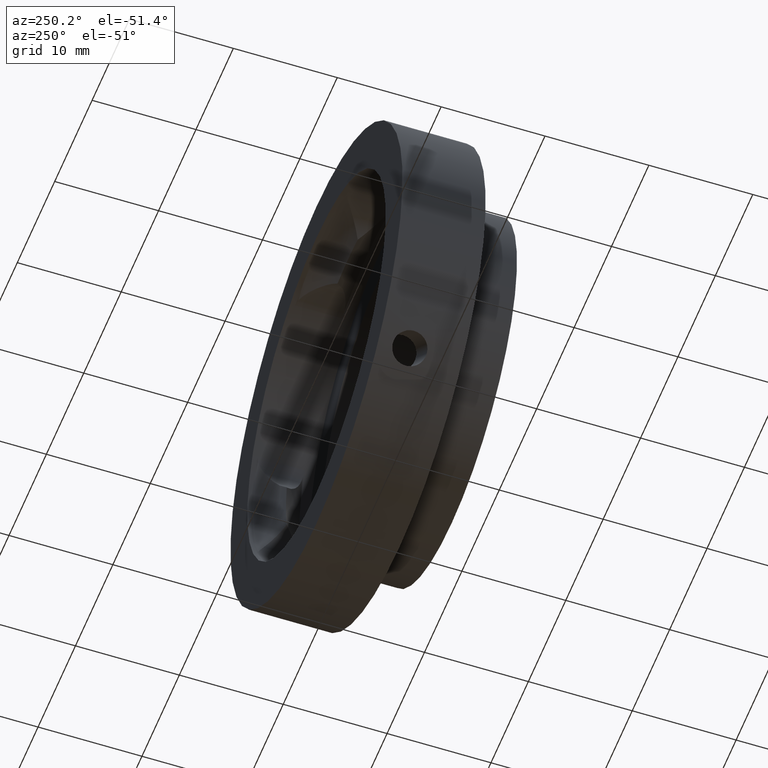
[diagram: clean part render]
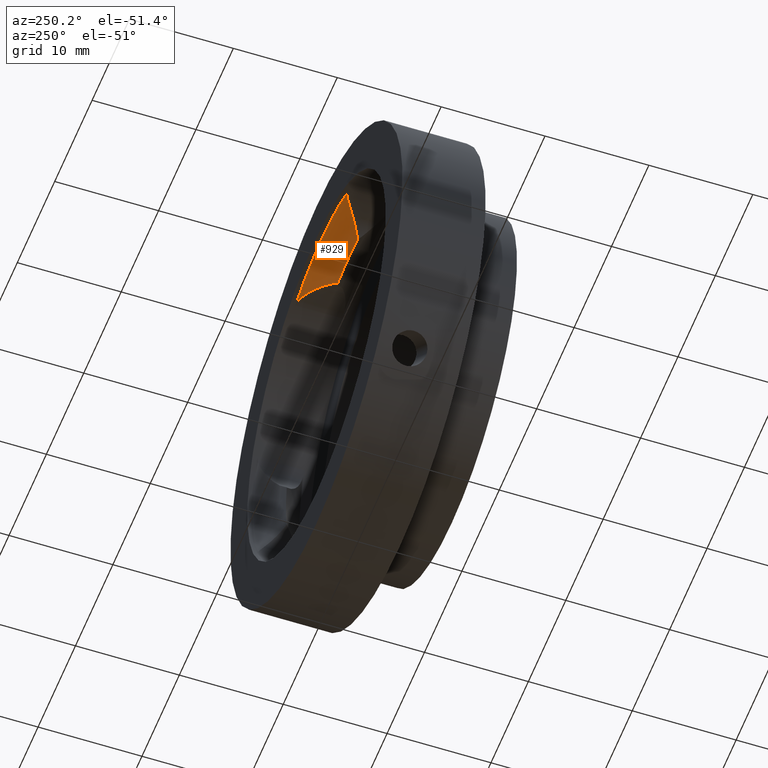
[diagram: same view with one face highlighted and labeled with its STEP entity id]
A machine part, auxiliary view. The second image highlights one B-rep face of the part: STEP entity #929.
In plain terms, the highlighted toroidal blend (fillet) surface has major radius 14.6376 mm and minor (blend) radius 4 mm.
Its self-contained STEP definition (entity closure, byte-faithful):
#3 = CARTESIAN_POINT ( 'NONE',  ( 3.309383978498485300, 1.376648082875349600, 16.79154448145638800 ) ) ;
#8 = CARTESIAN_POINT ( 'NONE',  ( -3.818328121953643400, 1.715373747438431400, 17.05630417228515600 ) ) ;
#13 = CARTESIAN_POINT ( 'NONE',  ( 5.427035956763773200, 2.808454470466621400, 17.42273638806529200 ) ) ;
#30 = DIRECTION ( 'NONE',  ( -1.000000000000000000, 0.0000000000000000000, -3.491481338843133700E-015 ) ) ;
#47 = EDGE_CURVE ( 'NONE', #1007, #974, #82, .T. ) ;
#48 = DIRECTION ( 'NONE',  ( -1.000000000000000000, 0.0000000000000000000, -3.491481338843133700E-015 ) ) ;
#60 = EDGE_CURVE ( 'NONE', #185, #801, #294, .T. ) ;
#82 = CIRCLE ( 'NONE', #133, 16.50000000000000400 ) ;
#87 = CARTESIAN_POINT ( 'NONE',  ( -6.189832400947998400, 3.269522945828833700, 17.36340583699442100 ) ) ;
#104 = CARTESIAN_POINT ( 'NONE',  ( -4.881920887914940700, 2.441744844110305100, 17.37627171932058100 ) ) ;
#133 = AXIS2_PLACEMENT_3D ( 'NONE', #210, #499, #48 ) ;
#151 = CARTESIAN_POINT ( 'NONE',  ( 2.265596578422603800E-015, 3.496721311475400600, 18.50000000000000400 ) ) ;
#179 = CARTESIAN_POINT ( 'NONE',  ( -6.799419849856213300, 3.482401770957626900, 17.20142613376728800 ) ) ;
#183 = ORIENTED_EDGE ( 'NONE', *, *, #223, .T. ) ;
#184 = CARTESIAN_POINT ( 'NONE',  ( 3.814683146563549800, 1.712919933562090600, 17.05464045493921100 ) ) ;
#185 = VERTEX_POINT ( 'NONE', #151 ) ;
#188 = CARTESIAN_POINT ( 'NONE',  ( -3.481859580618705600, 1.491401494846170000, 16.88157682170984900 ) ) ;
#210 = CARTESIAN_POINT ( 'NONE',  ( 0.0000000000000000000, 0.9967213114754017700, 0.0000000000000000000 ) ) ;
#223 = EDGE_CURVE ( 'NONE', #567, #185, #746, .T. ) ;
#224 = ORIENTED_EDGE ( 'NONE', *, *, #47, .F. ) ;
#226 = CARTESIAN_POINT ( 'NONE',  ( -2.696194980232713400, 0.9967213114754017700, 16.27822264955753800 ) ) ;
#240 = CARTESIAN_POINT ( 'NONE',  ( 0.0000000000000000000, 3.496721311475400600, 0.0000000000000000000 ) ) ;
#265 = CARTESIAN_POINT ( 'NONE',  ( 7.009002072654526600, 3.496721311475400600, 17.12086125011018500 ) ) ;
#267 = ORIENTED_EDGE ( 'NONE', *, *, #393, .T. ) ;
#276 = CARTESIAN_POINT ( 'NONE',  ( -3.990437708296221700, 1.831773841888898000, 17.13059303483643300 ) ) ;
#280 = CARTESIAN_POINT ( 'NONE',  ( 4.878601936514613200, 2.439475657725493900, 17.37573465897291700 ) ) ;
#284 = CARTESIAN_POINT ( 'NONE',  ( -4.522256403561862600, 2.195338139958088200, 17.30367196314876900 ) ) ;
#286 = CARTESIAN_POINT ( 'NONE',  ( 2.696194980232600600, 0.9967213114754017700, 16.27822264955755900 ) ) ;
#294 = CIRCLE ( 'NONE', #295, 18.50000000000000400 ) ;
#295 = AXIS2_PLACEMENT_3D ( 'NONE', #592, #785, #791 ) ;
#332 = DIRECTION ( 'NONE',  ( -1.000000000000000000, 0.0000000000000000000, -3.491481338843133000E-015 ) ) ;
#365 = CARTESIAN_POINT ( 'NONE',  ( 5.059515939408998800, 2.563154542518791600, 17.39969678763883800 ) ) ;
#377 = CARTESIAN_POINT ( 'NONE',  ( -6.492012457404905000, 3.396654395817728200, 17.29381032218389400 ) ) ;
#379 = B_SPLINE_CURVE_WITH_KNOTS ( 'NONE', 3,
 ( #854, #384, #1140, #758, #188, #8, #276, #572, #284, #104, #930, #943, #1027, #940, #87, #377, #469, #179, #1133, #382 ),
 .UNSPECIFIED., .F., .F.,
 ( 4, 2, 2, 2, 2, 2, 2, 2, 2, 4 ),
 ( 0.01947316875624095100, 0.02013732411579242900, 0.02080147947534390400, 0.02146563483489538300, 0.02212979019444686100, 0.02279394555399833600, 0.02345810091354981500, 0.02412225627310129300, 0.02445433395287703200, 0.02478641163265277200 ),
 .UNSPECIFIED. ) ;
#382 = CARTESIAN_POINT ( 'NONE',  ( -7.009002072654650000, 3.496721311475400600, 17.12086125011014200 ) ) ;
#384 = CARTESIAN_POINT ( 'NONE',  ( -2.841928745961778800, 1.083257676839830500, 16.42080530397894800 ) ) ;
#391 = EDGE_LOOP ( 'NONE', ( #224, #267, #183, #1067, #1084 ) ) ;
#393 = EDGE_CURVE ( 'NONE', #1007, #567, #379, .T. ) ;
#401 = DIRECTION ( 'NONE',  ( 0.0000000000000000000, 1.000000000000000000, 0.0000000000000000000 ) ) ;
#406 = EDGE_CURVE ( 'NONE', #801, #974, #483, .T. ) ;
#424 = DIRECTION ( 'NONE',  ( 0.0000000000000000000, 1.000000000000000000, 0.0000000000000000000 ) ) ;
#469 = CARTESIAN_POINT ( 'NONE',  ( -6.593454132979362100, 3.432225387919167800, 17.26637112657474300 ) ) ;
#475 = CARTESIAN_POINT ( 'NONE',  ( 5.614732754411211800, 2.931068077787912800, 17.42176161910860100 ) ) ;
#483 = B_SPLINE_CURVE_WITH_KNOTS ( 'NONE', 3,
 ( #1138, #1035, #838, #1040, #754, #556, #946, #475, #13, #365, #280, #561, #1218, #764, #184, #3, #1127, #286 ),
 .UNSPECIFIED., .F., .F.,
 ( 4, 2, 2, 2, 2, 2, 2, 2, 4 ),
 ( 0.02911646445298699300, 0.02945188218109116200, 0.02978729990919533000, 0.03045813536540366300, 0.03112897082161200000, 0.03179980627782033600, 0.03247064173402866600, 0.03314147719023700200, 0.03448314810265366800 ),
 .UNSPECIFIED. ) ;
#497 = CARTESIAN_POINT ( 'NONE',  ( 0.0000000000000000000, 4.536678175484937900, 0.0000000000000000000 ) ) ;
#499 = DIRECTION ( 'NONE',  ( 0.0000000000000000000, 1.000000000000000000, 0.0000000000000000000 ) ) ;
#556 = CARTESIAN_POINT ( 'NONE',  ( 6.187004466313717400, 3.268089162794293400, 17.36391773417063800 ) ) ;
#561 = CARTESIAN_POINT ( 'NONE',  ( 4.519949017221313700, 2.193752640003354700, 17.30307122314359000 ) ) ;
#567 = VERTEX_POINT ( 'NONE', #1171 ) ;
#572 = CARTESIAN_POINT ( 'NONE',  ( -4.342653221995796300, 2.071907201204979300, 17.25445482783870700 ) ) ;
#592 = CARTESIAN_POINT ( 'NONE',  ( 0.0000000000000000000, 3.496721311475400600, 0.0000000000000000000 ) ) ;
#680 = CARTESIAN_POINT ( 'NONE',  ( 2.696194980232600600, 0.9967213114754017700, 16.27822264955755900 ) ) ;
#742 = TOROIDAL_SURFACE ( 'NONE', #965, 14.63755391998808100, 4.000000000000000000 ) ;
#746 = CIRCLE ( 'NONE', #950, 18.50000000000000400 ) ;
#754 = CARTESIAN_POINT ( 'NONE',  ( 6.489612686074695900, 3.395764499672379700, 17.29443141156208300 ) ) ;
#758 = CARTESIAN_POINT ( 'NONE',  ( -3.317503025158172300, 1.383803078169443500, 16.78116720282783800 ) ) ;
#764 = CARTESIAN_POINT ( 'NONE',  ( 3.989161027966479500, 1.830906347312716300, 17.13010007589784300 ) ) ;
#770 = FACE_OUTER_BOUND ( 'NONE', #391, .T. ) ;
#785 = DIRECTION ( 'NONE',  ( 0.0000000000000000000, 1.000000000000000000, 0.0000000000000000000 ) ) ;
#791 = DIRECTION ( 'NONE',  ( -1.000000000000000000, 0.0000000000000000000, -3.491481338843133000E-015 ) ) ;
#801 = VERTEX_POINT ( 'NONE', #265 ) ;
#838 = CARTESIAN_POINT ( 'NONE',  ( 6.799716323677623500, 3.482493921932085600, 17.20134099735960100 ) ) ;
#854 = CARTESIAN_POINT ( 'NONE',  ( -2.696194980232713400, 0.9967213114754017700, 16.27822264955753800 ) ) ;
#929 = ADVANCED_FACE ( 'NONE', ( #770 ), #742, .F. ) ;
#930 = CARTESIAN_POINT ( 'NONE',  ( -5.062972195141851400, 2.565497703908635100, 17.40005995960787600 ) ) ;
#940 = CARTESIAN_POINT ( 'NONE',  ( -5.997083040570802700, 3.161636105778485600, 17.39181581353225100 ) ) ;
#943 = CARTESIAN_POINT ( 'NONE',  ( -5.429985369823857200, 2.810386111617965800, 17.42277220393307500 ) ) ;
#946 = CARTESIAN_POINT ( 'NONE',  ( 5.994942858208590400, 3.160417594367918700, 17.39208216788540200 ) ) ;
#950 = AXIS2_PLACEMENT_3D ( 'NONE', #240, #424, #332 ) ;
#965 = AXIS2_PLACEMENT_3D ( 'NONE', #497, #401, #30 ) ;
#974 = VERTEX_POINT ( 'NONE', #680 ) ;
#1007 = VERTEX_POINT ( 'NONE', #226 ) ;
#1027 = CARTESIAN_POINT ( 'NONE',  ( -5.616708695620848100, 2.932331705851903600, 17.42170559750247000 ) ) ;
#1035 = CARTESIAN_POINT ( 'NONE',  ( 6.905958475420027800, 3.496721311475403200, 17.16304562249891700 ) ) ;
#1040 = CARTESIAN_POINT ( 'NONE',  ( 6.592597498048125000, 3.431996719209202200, 17.26663287005818100 ) ) ;
#1067 = ORIENTED_EDGE ( 'NONE', *, *, #60, .T. ) ;
#1084 = ORIENTED_EDGE ( 'NONE', *, *, #406, .T. ) ;
#1127 = CARTESIAN_POINT ( 'NONE',  ( 2.991469206254828700, 1.172054448431503900, 16.56711234315652000 ) ) ;
#1133 = CARTESIAN_POINT ( 'NONE',  ( -6.904947751138544200, 3.496721311475408500, 17.16345939657724900 ) ) ;
#1138 = CARTESIAN_POINT ( 'NONE',  ( 7.009002072654526600, 3.496721311475400600, 17.12086125011018500 ) ) ;
#1140 = CARTESIAN_POINT ( 'NONE',  ( -2.997086635570589000, 1.179423159652337500, 16.55061297075513900 ) ) ;
#1171 = CARTESIAN_POINT ( 'NONE',  ( -7.009002072654650000, 3.496721311475400600, 17.12086125011014200 ) ) ;
#1218 = CARTESIAN_POINT ( 'NONE',  ( 4.342260360355002300, 2.071636449859516100, 17.25436046013610500 ) ) ;